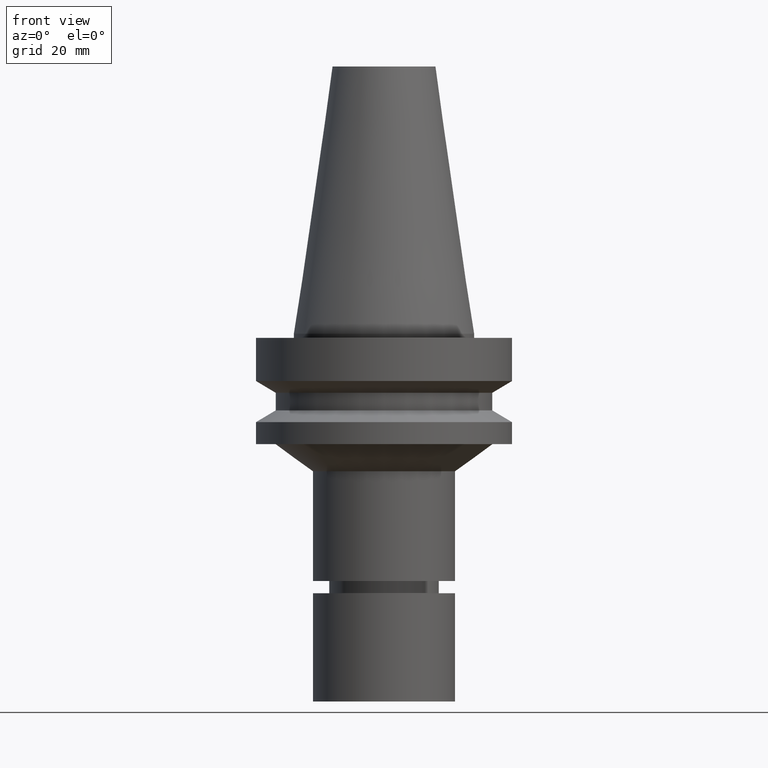
[diagram: clean part render]
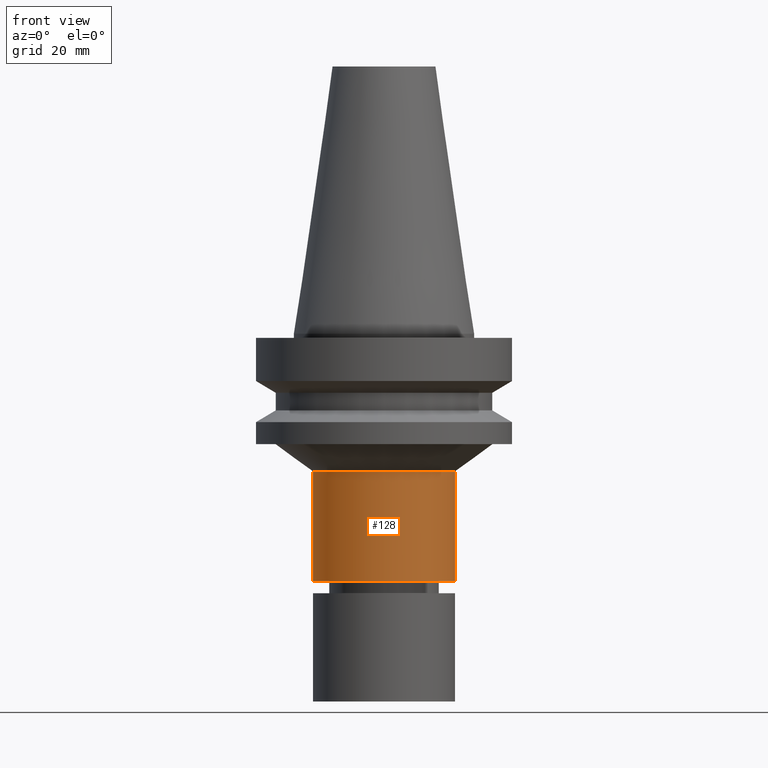
[diagram: same view with one face highlighted and labeled with its STEP entity id]
A machine part, front view. The second image highlights one B-rep face of the part: STEP entity #128.
In plain terms, the highlighted cylindrical surface (bore or boss wall) has radius 17.5 mm, axis along (0, -0, -1).
Its self-contained STEP definition (entity closure, byte-faithful):
#85=EDGE_CURVE('Unnamed[1]',#215,#215,#216,.T.);
#104=EDGE_CURVE('Unnamed[1]',#243,#243,#244,.T.);
#128=ADVANCED_FACE('Unnamed[1]',(#280,#281),#282,.T.);
#215=VERTEX_POINT('',#394);
#216=CIRCLE('',#395,17.4999999999998);
#243=VERTEX_POINT('',#429);
#244=CIRCLE('',#430,17.5000000000009);
#280=FACE_BOUND('',#476,.T.);
#281=FACE_BOUND('',#477,.T.);
#282=CYLINDRICAL_SURFACE('',#478,17.5000000000003);
#394=CARTESIAN_POINT('',(3.70455656742073E-015,17.4999999999998,-60.4999999999998));
#395=AXIS2_PLACEMENT_3D('',#593,#594,#595);
#429=CARTESIAN_POINT('',(2.06136472190229E-015,17.500000000001,-33.6646406676193));
#430=AXIS2_PLACEMENT_3D('',#626,#627,#628);
#476=EDGE_LOOP('',(#666));
#477=EDGE_LOOP('',(#667));
#478=AXIS2_PLACEMENT_3D('',#668,#669,#670);
#593=CARTESIAN_POINT('',(3.70455656742073E-015,5.73510236679714E-014,-60.4999999999998));
#594=DIRECTION('',(6.12323399573677E-017,-1.56164866711454E-016,-1.0));
#595=DIRECTION('',(4.73518747710928E-033,1.0,-1.56164866711454E-016));
#626=CARTESIAN_POINT('',(2.06136472190229E-015,6.1541763981268E-014,-33.6646406676193));
#627=DIRECTION('',(6.12323399573677E-017,-1.56164866711444E-016,-1.0));
#628=DIRECTION('',(4.73518747710897E-033,1.0,-1.56164866711444E-016));
#666=ORIENTED_EDGE('',*,*,#85,.F.);
#667=ORIENTED_EDGE('',*,*,#104,.T.);
#668=CARTESIAN_POINT('',(2.88296064466151E-015,5.94463938246197E-014,-47.0823203338095));
#669=DIRECTION('',(6.12323399573677E-017,-1.56164866711449E-016,-1.0));
#670=DIRECTION('',(4.73518747709888E-033,1.0,-1.56164866711449E-016));